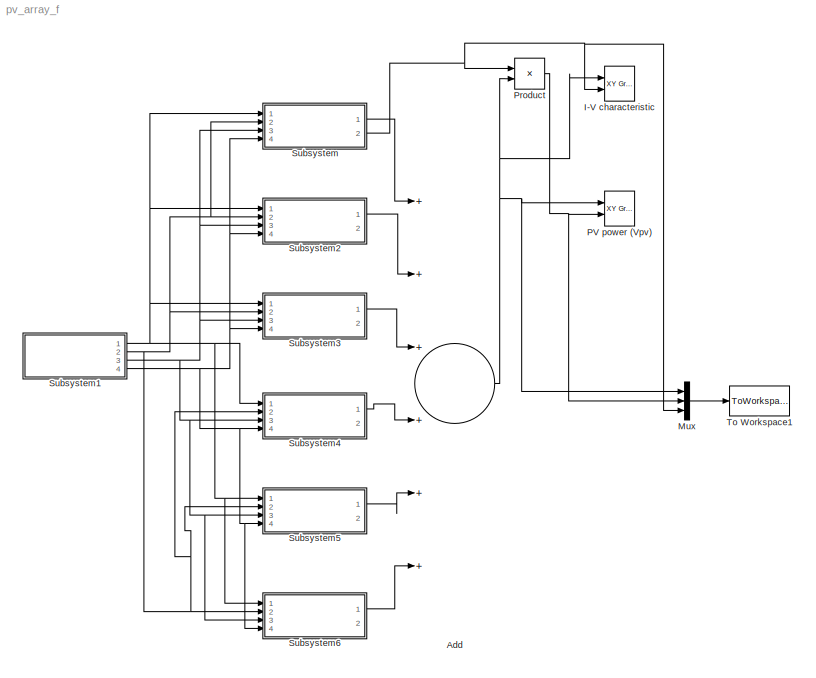
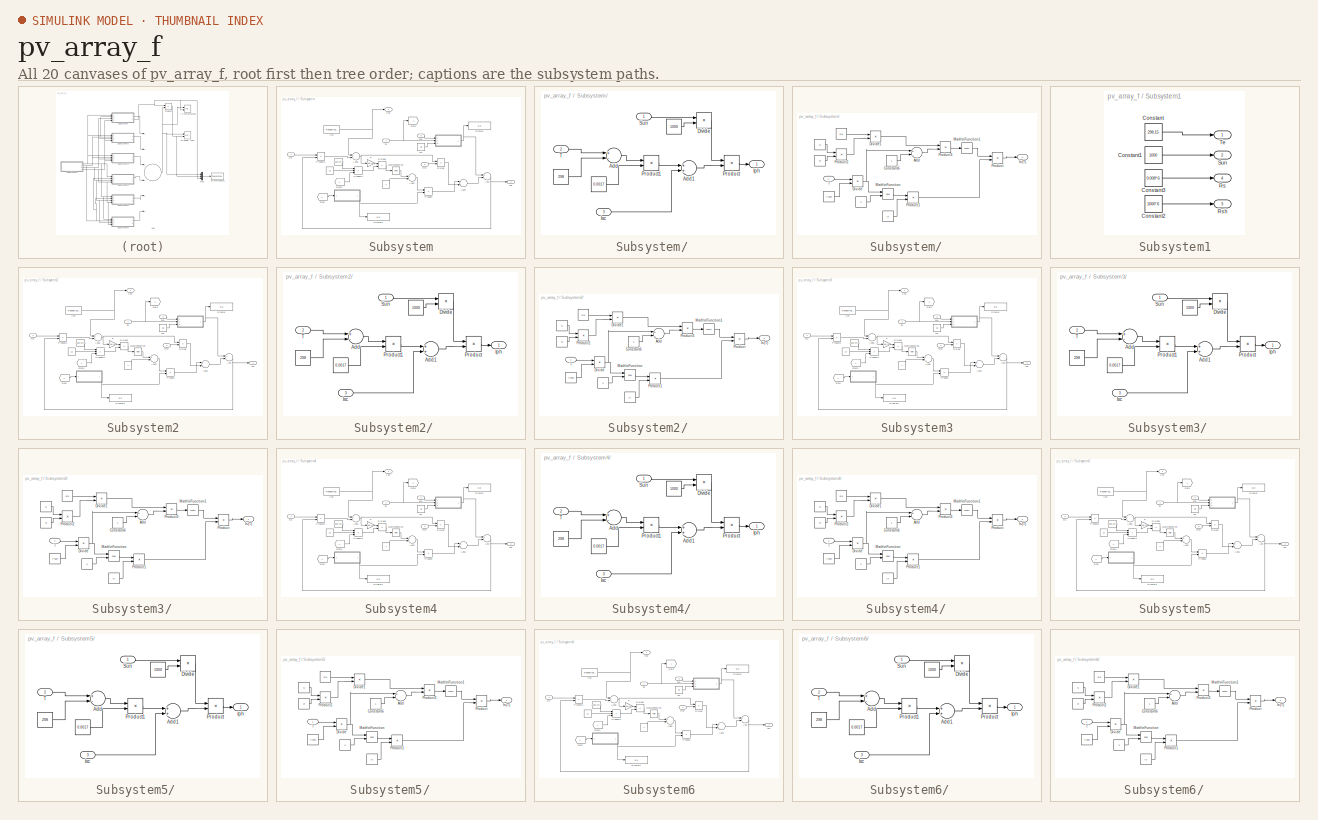
[diagram: thumbnail index - all 20 canvases of the model, root first then tree order]
MODEL pv_array_f
KIND model
BLOCK [Sum] Add
  InputSameDT = off
  Inputs = ++++++
  OutDataTypeStr = Inherit: Inherit via internal rule
  Ports = [6, 1]
  SID = 391
  SaturateOnIntegerOverflow = off
BLOCK [Reference] I-V characteristic  REF=simulink/Sinks/XY Graph
  Ports = [2]
  SID = 82
  SourceBlock = simulink/Sinks/XY Graph
  SourceProductBaseCode = SL
  SourceProductName = Simulink
  SourceType = XY scope.
  st = -1
  xmax = 130
  xmin = 0
  ymax = 4
  ymin = 0
BLOCK [Mux] Mux
  DisplayOption = bar
  Inputs = 3
  Ports = [3, 1]
  SID = 752
BLOCK [Reference] PV power (Vpv)  REF=simulink/Sinks/XY Graph
  Ports = [2]
  SID = 85
  SourceBlock = simulink/Sinks/XY Graph
  SourceProductBaseCode = SL
  SourceProductName = Simulink
  SourceType = XY scope.
  st = -1
  xmax = 130
  xmin = 0
  ymax = 400
  ymin = 0
BLOCK [Product] Product
  InputSameDT = off
  OutDataTypeStr = Inherit: Inherit via internal rule
  Ports = [2, 1]
  SID = 84
  SaturateOnIntegerOverflow = off
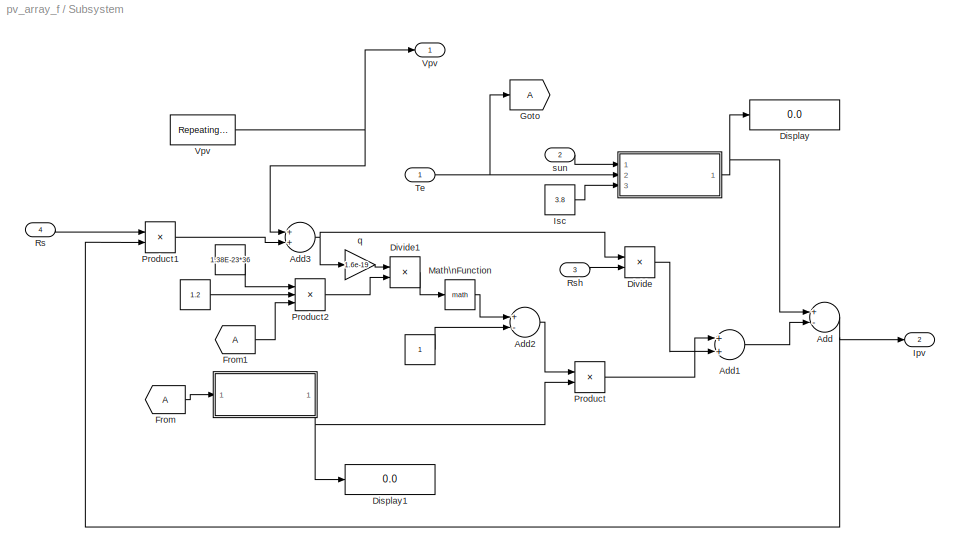
BLOCK [SubSystem] Subsystem
  Ports = [4, 2]
  RequestExecContextInheritance = off
  SID = 392
  Variant = off
BLOCK [SubSystem] Subsystem/  
  Ports = [3, 1]
  RequestExecContextInheritance = off
  SID = 397
  Variant = off
BLOCK [SubSystem] Subsystem/   
  Ports = [1, 1]
  RequestExecContextInheritance = off
  SID = 410
  Variant = off
BLOCK [Constant] Subsystem/           
  SID = 429
BLOCK [Constant] Subsystem/              
  SID = 430
  Value = 1.2
BLOCK [Constant] Subsystem/               
  SID = 431
  Value = 1.38E-23*36
BLOCK [Constant] Subsystem/   /  
  SID = 412
  Value = 3
BLOCK [Constant] Subsystem/   /      
  SID = 413
  Value = Is
BLOCK [Constant] Subsystem/   /        
  SID = 414
  Value = Tnom
BLOCK [Constant] Subsystem/   /                      
  SID = 415
  Value = Eg
BLOCK [Constant] Subsystem/   /                              
  SID = 416
  Value = N
BLOCK [Constant] Subsystem/   /                               
  SID = 417
  Value = vt
BLOCK [Sum] Subsystem/   /Add
  InputSameDT = off
  Inputs = +-
  OutDataTypeStr = Inherit: Inherit via internal rule
  Ports = [2, 1]
  SID = 418
  SaturateOnIntegerOverflow = off
BLOCK [Constant] Subsystem/   /Constant6
  SID = 419
BLOCK [Product] Subsystem/   /Divide
  InputSameDT = off
  Inputs = */
  OutDataTypeStr = Inherit: Inherit via internal rule
  Ports = [2, 1]
  RndMeth = Floor
  SID = 420
  SaturateOnIntegerOverflow = off
BLOCK [Product] Subsystem/   /Divide1
  InputSameDT = off
  Inputs = */
  OutDataTypeStr = Inherit: Inherit via internal rule
  Ports = [2, 1]
  RndMeth = Floor
  SID = 421
  SaturateOnIntegerOverflow = off
BLOCK [Outport] Subsystem/   /Is(T)
  IconDisplay = Port number
  SID = 428
BLOCK [Math] Subsystem/   /Math\nFunction
  Operator = pow
  Ports = [2, 1]
  SID = 422
BLOCK [Math] Subsystem/   /Math\nFunction1
  Ports = [1, 1]
  SID = 423
BLOCK [Product] Subsystem/   /Product
  InputSameDT = off
  OutDataTypeStr = Inherit: Inherit via internal rule
  Ports = [2, 1]
  SID = 424
  SaturateOnIntegerOverflow = off
BLOCK [Product] Subsystem/   /Product1
  InputSameDT = off
  OutDataTypeStr = Inherit: Inherit via internal rule
  Ports = [2, 1]
  SID = 425
  SaturateOnIntegerOverflow = off
BLOCK [Product] Subsystem/   /Product2
  InputSameDT = off
  OutDataTypeStr = Inherit: Inherit via internal rule
  Ports = [2, 1]
  SID = 426
  SaturateOnIntegerOverflow = off
BLOCK [Product] Subsystem/   /Product3
  InputSameDT = off
  OutDataTypeStr = Inherit: Inherit via internal rule
  Ports = [2, 1]
  SID = 427
  SaturateOnIntegerOverflow = off
BLOCK [Inport] Subsystem/   /T
  IconDisplay = Port number
  SID = 411
BLOCK [Constant] Subsystem/  /   
  SID = 401
  Value = 0.0017
BLOCK [Constant] Subsystem/  /    
  SID = 402
  Value = 1000
BLOCK [Constant] Subsystem/  /      
  SID = 403
  Value = 298
BLOCK [Sum] Subsystem/  /Add
  InputSameDT = off
  Inputs = +-
  OutDataTypeStr = Inherit: Inherit via internal rule
  Ports = [2, 1]
  SID = 404
  SaturateOnIntegerOverflow = off
BLOCK [Sum] Subsystem/  /Add1
  InputSameDT = off
  OutDataTypeStr = Inherit: Inherit via internal rule
  Ports = [2, 1]
  SID = 405
  SaturateOnIntegerOverflow = off
BLOCK [Product] Subsystem/  /Divide
  InputSameDT = off
  Inputs = */
  OutDataTypeStr = Inherit: Inherit via internal rule
  Ports = [2, 1]
  RndMeth = Floor
  SID = 406
  SaturateOnIntegerOverflow = off
BLOCK [Outport] Subsystem/  /Iph
  IconDisplay = Port number
  SID = 409
BLOCK [Inport] Subsystem/  /Isc
  IconDisplay = Port number
  Port = 3
  SID = 400
BLOCK [Product] Subsystem/  /Product
  InputSameDT = off
  OutDataTypeStr = Inherit: Inherit via internal rule
  Ports = [2, 1]
  SID = 407
  SaturateOnIntegerOverflow = off
BLOCK [Product] Subsystem/  /Product1
  InputSameDT = off
  OutDataTypeStr = Inherit: Inherit via internal rule
  Ports = [2, 1]
  SID = 408
  SaturateOnIntegerOverflow = off
BLOCK [Inport] Subsystem/  /Sun
  IconDisplay = Port number
  SID = 398
BLOCK [Inport] Subsystem/  /T
  IconDisplay = Port number
  Port = 2
  SID = 399
BLOCK [Sum] Subsystem/Add
  InputSameDT = off
  Inputs = +-
  OutDataTypeStr = Inherit: Inherit via internal rule
  Ports = [2, 1]
  SID = 432
  SaturateOnIntegerOverflow = off
BLOCK [Sum] Subsystem/Add1
  InputSameDT = off
  OutDataTypeStr = Inherit: Inherit via internal rule
  Ports = [2, 1]
  SID = 433
  SaturateOnIntegerOverflow = off
BLOCK [Sum] Subsystem/Add2
  InputSameDT = off
  Inputs = +-
  OutDataTypeStr = Inherit: Inherit via internal rule
  Ports = [2, 1]
  SID = 434
  SaturateOnIntegerOverflow = off
BLOCK [Sum] Subsystem/Add3
  InputSameDT = off
  OutDataTypeStr = Inherit: Inherit via internal rule
  Ports = [2, 1]
  SID = 435
  SaturateOnIntegerOverflow = off
BLOCK [Display] Subsystem/Display
  Decimation = 1
  Ports = [1]
  SID = 436
BLOCK [Display] Subsystem/Display1
  Decimation = 1
  Ports = [1]
  SID = 437
BLOCK [Product] Subsystem/Divide
  InputSameDT = off
  Inputs = */
  OutDataTypeStr = Inherit: Inherit via internal rule
  Ports = [2, 1]
  RndMeth = Floor
  SID = 438
  SaturateOnIntegerOverflow = off
BLOCK [Product] Subsystem/Divide1
  InputSameDT = off
  Inputs = */
  OutDataTypeStr = Inherit: Inherit via internal rule
  Ports = [2, 1]
  RndMeth = Floor
  SID = 439
  SaturateOnIntegerOverflow = off
BLOCK [From] Subsystem/From
  SID = 440
BLOCK [From] Subsystem/From1
  SID = 441
BLOCK [Goto] Subsystem/Goto
  SID = 442
BLOCK [Outport] Subsystem/Ipv
  IconDisplay = Port number
  Port = 2
  SID = 451
BLOCK [Constant] Subsystem/Isc
  SID = 443
  Value = 3.8
BLOCK [Math] Subsystem/Math\nFunction
  Ports = [1, 1]
  SID = 444
BLOCK [Product] Subsystem/Product
  InputSameDT = off
  OutDataTypeStr = Inherit: Inherit via internal rule
  Ports = [2, 1]
  SID = 445
  SaturateOnIntegerOverflow = off
BLOCK [Product] Subsystem/Product1
  InputSameDT = off
  OutDataTypeStr = Inherit: Inherit via internal rule
  Ports = [2, 1]
  SID = 446
  SaturateOnIntegerOverflow = off
BLOCK [Product] Subsystem/Product2
  InputSameDT = off
  Inputs = 3
  OutDataTypeStr = Inherit: Inherit via internal rule
  Ports = [3, 1]
  SID = 447
  SaturateOnIntegerOverflow = off
BLOCK [Inport] Subsystem/Rs
  IconDisplay = Port number
  Port = 4
  SID = 396
BLOCK [Inport] Subsystem/Rsh
  IconDisplay = Port number
  Port = 3
  SID = 395
BLOCK [Inport] Subsystem/Te
  IconDisplay = Port number
  SID = 393
BLOCK [Outport] Subsystem/Vpv
  IconDisplay = Port number
  SID = 450
BLOCK [Reference] Subsystem/Vpv        REF=simulink/Sources/Repeating\nSequence
  Ports = [0, 1]
  SID = 448
  SourceBlock = simulink/Sources/Repeating\nSequence
  SourceProductBaseCode = SL
  SourceProductName = Simulink
  SourceType = Repeating table
  rep_seq_t = [0 1 2]
  rep_seq_y = [-0.1  21.5 -0.1]
BLOCK [Gain] Subsystem/q
  Gain = 1.6e-19
  OutDataTypeStr = Inherit: Inherit via internal rule
  ParamDataTypeStr = Inherit: Inherit via internal rule
  SID = 449
  SaturateOnIntegerOverflow = off
BLOCK [Inport] Subsystem/sun
  IconDisplay = Port number
  Port = 2
  SID = 394
BLOCK [SubSystem] Subsystem1
  Ports = [0, 4]
  RequestExecContextInheritance = off
  SID = 71
  Variant = off
BLOCK [Constant] Subsystem1/Constant
  SID = 77
  Value = 298.15
BLOCK [Constant] Subsystem1/Constant1
  SID = 78
  Value = 1000
BLOCK [Constant] Subsystem1/Constant2
  SID = 79
  Value = 1000*6
BLOCK [Constant] Subsystem1/Constant3
  SID = 80
  Value = 0.008*6
BLOCK [Outport] Subsystem1/Rs
  IconDisplay = Port number
  Port = 4
  SID = 75
BLOCK [Outport] Subsystem1/Rsh
  IconDisplay = Port number
  Port = 3
  SID = 76
BLOCK [Outport] Subsystem1/Sun
  IconDisplay = Port number
  Port = 2
  SID = 74
BLOCK [Outport] Subsystem1/Te
  IconDisplay = Port number
  SID = 73
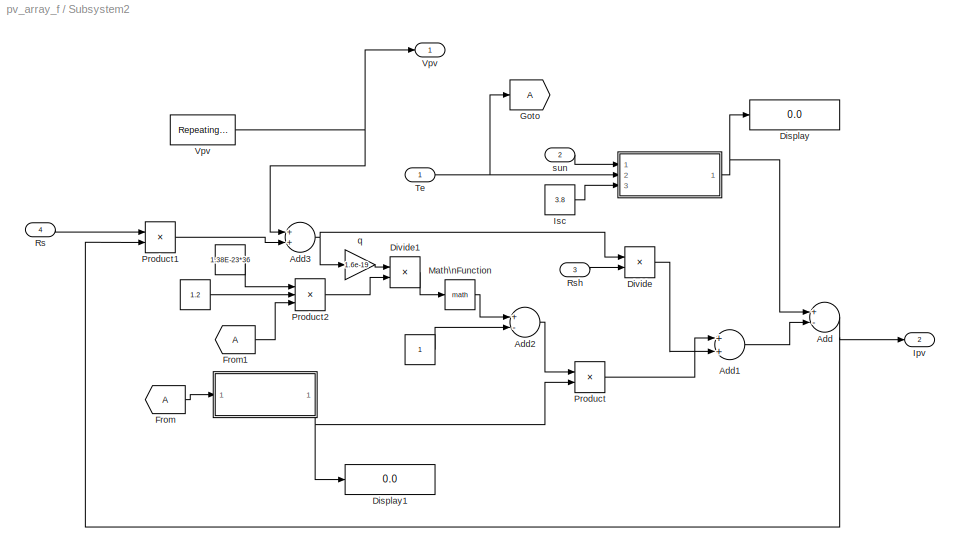
BLOCK [SubSystem] Subsystem2
  Ports = [4, 2]
  RequestExecContextInheritance = off
  SID = 452
  Variant = off
BLOCK [SubSystem] Subsystem2/  
  Ports = [3, 1]
  RequestExecContextInheritance = off
  SID = 457
  Variant = off
BLOCK [SubSystem] Subsystem2/   
  Ports = [1, 1]
  RequestExecContextInheritance = off
  SID = 470
  Variant = off
BLOCK [Constant] Subsystem2/           
  SID = 489
BLOCK [Constant] Subsystem2/              
  SID = 490
  Value = 1.2
BLOCK [Constant] Subsystem2/               
  SID = 491
  Value = 1.38E-23*36
BLOCK [Constant] Subsystem2/   /  
  SID = 472
  Value = 3
BLOCK [Constant] Subsystem2/   /      
  SID = 473
  Value = Is
BLOCK [Constant] Subsystem2/   /        
  SID = 474
  Value = Tnom
BLOCK [Constant] Subsystem2/   /                      
  SID = 475
  Value = Eg
BLOCK [Constant] Subsystem2/   /                              
  SID = 476
  Value = N
BLOCK [Constant] Subsystem2/   /                               
  SID = 477
  Value = vt
BLOCK [Sum] Subsystem2/   /Add
  InputSameDT = off
  Inputs = +-
  OutDataTypeStr = Inherit: Inherit via internal rule
  Ports = [2, 1]
  SID = 478
  SaturateOnIntegerOverflow = off
BLOCK [Constant] Subsystem2/   /Constant6
  SID = 479
BLOCK [Product] Subsystem2/   /Divide
  InputSameDT = off
  Inputs = */
  OutDataTypeStr = Inherit: Inherit via internal rule
  Ports = [2, 1]
  RndMeth = Floor
  SID = 480
  SaturateOnIntegerOverflow = off
BLOCK [Product] Subsystem2/   /Divide1
  InputSameDT = off
  Inputs = */
  OutDataTypeStr = Inherit: Inherit via internal rule
  Ports = [2, 1]
  RndMeth = Floor
  SID = 481
  SaturateOnIntegerOverflow = off
BLOCK [Outport] Subsystem2/   /Is(T)
  IconDisplay = Port number
  SID = 488
BLOCK [Math] Subsystem2/   /Math\nFunction
  Operator = pow
  Ports = [2, 1]
  SID = 482
BLOCK [Math] Subsystem2/   /Math\nFunction1
  Ports = [1, 1]
  SID = 483
BLOCK [Product] Subsystem2/   /Product
  InputSameDT = off
  OutDataTypeStr = Inherit: Inherit via internal rule
  Ports = [2, 1]
  SID = 484
  SaturateOnIntegerOverflow = off
BLOCK [Product] Subsystem2/   /Product1
  InputSameDT = off
  OutDataTypeStr = Inherit: Inherit via internal rule
  Ports = [2, 1]
  SID = 485
  SaturateOnIntegerOverflow = off
BLOCK [Product] Subsystem2/   /Product2
  InputSameDT = off
  OutDataTypeStr = Inherit: Inherit via internal rule
  Ports = [2, 1]
  SID = 486
  SaturateOnIntegerOverflow = off
BLOCK [Product] Subsystem2/   /Product3
  InputSameDT = off
  OutDataTypeStr = Inherit: Inherit via internal rule
  Ports = [2, 1]
  SID = 487
  SaturateOnIntegerOverflow = off
BLOCK [Inport] Subsystem2/   /T
  IconDisplay = Port number
  SID = 471
BLOCK [Constant] Subsystem2/  /   
  SID = 461
  Value = 0.0017
BLOCK [Constant] Subsystem2/  /    
  SID = 462
  Value = 1000
BLOCK [Constant] Subsystem2/  /      
  SID = 463
  Value = 298
BLOCK [Sum] Subsystem2/  /Add
  InputSameDT = off
  Inputs = +-
  OutDataTypeStr = Inherit: Inherit via internal rule
  Ports = [2, 1]
  SID = 464
  SaturateOnIntegerOverflow = off
BLOCK [Sum] Subsystem2/  /Add1
  InputSameDT = off
  OutDataTypeStr = Inherit: Inherit via internal rule
  Ports = [2, 1]
  SID = 465
  SaturateOnIntegerOverflow = off
BLOCK [Product] Subsystem2/  /Divide
  InputSameDT = off
  Inputs = */
  OutDataTypeStr = Inherit: Inherit via internal rule
  Ports = [2, 1]
  RndMeth = Floor
  SID = 466
  SaturateOnIntegerOverflow = off
BLOCK [Outport] Subsystem2/  /Iph
  IconDisplay = Port number
  SID = 469
BLOCK [Inport] Subsystem2/  /Isc
  IconDisplay = Port number
  Port = 3
  SID = 460
BLOCK [Product] Subsystem2/  /Product
  InputSameDT = off
  OutDataTypeStr = Inherit: Inherit via internal rule
  Ports = [2, 1]
  SID = 467
  SaturateOnIntegerOverflow = off
BLOCK [Product] Subsystem2/  /Product1
  InputSameDT = off
  OutDataTypeStr = Inherit: Inherit via internal rule
  Ports = [2, 1]
  SID = 468
  SaturateOnIntegerOverflow = off
BLOCK [Inport] Subsystem2/  /Sun
  IconDisplay = Port number
  SID = 458
BLOCK [Inport] Subsystem2/  /T
  IconDisplay = Port number
  Port = 2
  SID = 459
BLOCK [Sum] Subsystem2/Add
  InputSameDT = off
  Inputs = +-
  OutDataTypeStr = Inherit: Inherit via internal rule
  Ports = [2, 1]
  SID = 492
  SaturateOnIntegerOverflow = off
BLOCK [Sum] Subsystem2/Add1
  InputSameDT = off
  OutDataTypeStr = Inherit: Inherit via internal rule
  Ports = [2, 1]
  SID = 493
  SaturateOnIntegerOverflow = off
BLOCK [Sum] Subsystem2/Add2
  InputSameDT = off
  Inputs = +-
  OutDataTypeStr = Inherit: Inherit via internal rule
  Ports = [2, 1]
  SID = 494
  SaturateOnIntegerOverflow = off
BLOCK [Sum] Subsystem2/Add3
  InputSameDT = off
  OutDataTypeStr = Inherit: Inherit via internal rule
  Ports = [2, 1]
  SID = 495
  SaturateOnIntegerOverflow = off
BLOCK [Display] Subsystem2/Display
  Decimation = 1
  Ports = [1]
  SID = 496
BLOCK [Display] Subsystem2/Display1
  Decimation = 1
  Ports = [1]
  SID = 497
BLOCK [Product] Subsystem2/Divide
  InputSameDT = off
  Inputs = */
  OutDataTypeStr = Inherit: Inherit via internal rule
  Ports = [2, 1]
  RndMeth = Floor
  SID = 498
  SaturateOnIntegerOverflow = off
BLOCK [Product] Subsystem2/Divide1
  InputSameDT = off
  Inputs = */
  OutDataTypeStr = Inherit: Inherit via internal rule
  Ports = [2, 1]
  RndMeth = Floor
  SID = 499
  SaturateOnIntegerOverflow = off
BLOCK [From] Subsystem2/From
  SID = 500
BLOCK [From] Subsystem2/From1
  SID = 501
BLOCK [Goto] Subsystem2/Goto
  SID = 502
BLOCK [Outport] Subsystem2/Ipv
  IconDisplay = Port number
  Port = 2
  SID = 511
BLOCK [Constant] Subsystem2/Isc
  SID = 503
  Value = 3.8
BLOCK [Math] Subsystem2/Math\nFunction
  Ports = [1, 1]
  SID = 504
BLOCK [Product] Subsystem2/Product
  InputSameDT = off
  OutDataTypeStr = Inherit: Inherit via internal rule
  Ports = [2, 1]
  SID = 505
  SaturateOnIntegerOverflow = off
BLOCK [Product] Subsystem2/Product1
  InputSameDT = off
  OutDataTypeStr = Inherit: Inherit via internal rule
  Ports = [2, 1]
  SID = 506
  SaturateOnIntegerOverflow = off
BLOCK [Product] Subsystem2/Product2
  InputSameDT = off
  Inputs = 3
  OutDataTypeStr = Inherit: Inherit via internal rule
  Ports = [3, 1]
  SID = 507
  SaturateOnIntegerOverflow = off
BLOCK [Inport] Subsystem2/Rs
  IconDisplay = Port number
  Port = 4
  SID = 456
BLOCK [Inport] Subsystem2/Rsh
  IconDisplay = Port number
  Port = 3
  SID = 455
BLOCK [Inport] Subsystem2/Te
  IconDisplay = Port number
  SID = 453
BLOCK [Outport] Subsystem2/Vpv
  IconDisplay = Port number
  SID = 510
BLOCK [Reference] Subsystem2/Vpv        REF=simulink/Sources/Repeating\nSequence
  Ports = [0, 1]
  SID = 508
  SourceBlock = simulink/Sources/Repeating\nSequence
  SourceProductBaseCode = SL
  SourceProductName = Simulink
  SourceType = Repeating table
  rep_seq_t = [0 1 2]
  rep_seq_y = [-0.1  21.5 -0.1]
BLOCK [Gain] Subsystem2/q
  Gain = 1.6e-19
  OutDataTypeStr = Inherit: Inherit via internal rule
  ParamDataTypeStr = Inherit: Inherit via internal rule
  SID = 509
  SaturateOnIntegerOverflow = off
BLOCK [Inport] Subsystem2/sun
  IconDisplay = Port number
  Port = 2
  SID = 454
BLOCK [SubSystem] Subsystem3
  Ports = [4, 2]
  RequestExecContextInheritance = off
  SID = 512
  Variant = off
BLOCK [SubSystem] Subsystem3/  
  Ports = [3, 1]
  RequestExecContextInheritance = off
  SID = 517
  Variant = off
BLOCK [SubSystem] Subsystem3/   
  Ports = [1, 1]
  RequestExecContextInheritance = off
  SID = 530
  Variant = off
BLOCK [Constant] Subsystem3/           
  SID = 549
BLOCK [Constant] Subsystem3/              
  SID = 550
  Value = 1.2
BLOCK [Constant] Subsystem3/               
  SID = 551
  Value = 1.38E-23*36
BLOCK [Constant] Subsystem3/   /  
  SID = 532
  Value = 3
BLOCK [Constant] Subsystem3/   /      
  SID = 533
  Value = Is
BLOCK [Constant] Subsystem3/   /        
  SID = 534
  Value = Tnom
BLOCK [Constant] Subsystem3/   /                      
  SID = 535
  Value = Eg
BLOCK [Constant] Subsystem3/   /                              
  SID = 536
  Value = N
BLOCK [Constant] Subsystem3/   /                               
  SID = 537
  Value = vt
BLOCK [Sum] Subsystem3/   /Add
  InputSameDT = off
  Inputs = +-
  OutDataTypeStr = Inherit: Inherit via internal rule
  Ports = [2, 1]
  SID = 538
  SaturateOnIntegerOverflow = off
BLOCK [Constant] Subsystem3/   /Constant6
  SID = 539
BLOCK [Product] Subsystem3/   /Divide
  InputSameDT = off
  Inputs = */
  OutDataTypeStr = Inherit: Inherit via internal rule
  Ports = [2, 1]
  RndMeth = Floor
  SID = 540
  SaturateOnIntegerOverflow = off
BLOCK [Product] Subsystem3/   /Divide1
  InputSameDT = off
  Inputs = */
  OutDataTypeStr = Inherit: Inherit via internal rule
  Ports = [2, 1]
  RndMeth = Floor
  SID = 541
  SaturateOnIntegerOverflow = off
BLOCK [Outport] Subsystem3/   /Is(T)
  IconDisplay = Port number
  SID = 548
BLOCK [Math] Subsystem3/   /Math\nFunction
  Operator = pow
  Ports = [2, 1]
  SID = 542
BLOCK [Math] Subsystem3/   /Math\nFunction1
  Ports = [1, 1]
  SID = 543
BLOCK [Product] Subsystem3/   /Product
  InputSameDT = off
  OutDataTypeStr = Inherit: Inherit via internal rule
  Ports = [2, 1]
  SID = 544
  SaturateOnIntegerOverflow = off
BLOCK [Product] Subsystem3/   /Product1
  InputSameDT = off
  OutDataTypeStr = Inherit: Inherit via internal rule
  Ports = [2, 1]
  SID = 545
  SaturateOnIntegerOverflow = off
BLOCK [Product] Subsystem3/   /Product2
  InputSameDT = off
  OutDataTypeStr = Inherit: Inherit via internal rule
  Ports = [2, 1]
  SID = 546
  SaturateOnIntegerOverflow = off
BLOCK [Product] Subsystem3/   /Product3
  InputSameDT = off
  OutDataTypeStr = Inherit: Inherit via internal rule
  Ports = [2, 1]
  SID = 547
  SaturateOnIntegerOverflow = off
BLOCK [Inport] Subsystem3/   /T
  IconDisplay = Port number
  SID = 531
BLOCK [Constant] Subsystem3/  /   
  SID = 521
  Value = 0.0017
BLOCK [Constant] Subsystem3/  /    
  SID = 522
  Value = 1000
BLOCK [Constant] Subsystem3/  /      
  SID = 523
  Value = 298
BLOCK [Sum] Subsystem3/  /Add
  InputSameDT = off
  Inputs = +-
  OutDataTypeStr = Inherit: Inherit via internal rule
  Ports = [2, 1]
  SID = 524
  SaturateOnIntegerOverflow = off
BLOCK [Sum] Subsystem3/  /Add1
  InputSameDT = off
  OutDataTypeStr = Inherit: Inherit via internal rule
  Ports = [2, 1]
  SID = 525
  SaturateOnIntegerOverflow = off
BLOCK [Product] Subsystem3/  /Divide
  InputSameDT = off
  Inputs = */
  OutDataTypeStr = Inherit: Inherit via internal rule
  Ports = [2, 1]
  RndMeth = Floor
  SID = 526
  SaturateOnIntegerOverflow = off
BLOCK [Outport] Subsystem3/  /Iph
  IconDisplay = Port number
  SID = 529
BLOCK [Inport] Subsystem3/  /Isc
  IconDisplay = Port number
  Port = 3
  SID = 520
BLOCK [Product] Subsystem3/  /Product
  InputSameDT = off
  OutDataTypeStr = Inherit: Inherit via internal rule
  Ports = [2, 1]
  SID = 527
  SaturateOnIntegerOverflow = off
BLOCK [Product] Subsystem3/  /Product1
  InputSameDT = off
  OutDataTypeStr = Inherit: Inherit via internal rule
  Ports = [2, 1]
  SID = 528
  SaturateOnIntegerOverflow = off
BLOCK [Inport] Subsystem3/  /Sun
  IconDisplay = Port number
  SID = 518
BLOCK [Inport] Subsystem3/  /T
  IconDisplay = Port number
  Port = 2
  SID = 519
BLOCK [Sum] Subsystem3/Add
  InputSameDT = off
  Inputs = +-
  OutDataTypeStr = Inherit: Inherit via internal rule
  Ports = [2, 1]
  SID = 552
  SaturateOnIntegerOverflow = off
BLOCK [Sum] Subsystem3/Add1
  InputSameDT = off
  OutDataTypeStr = Inherit: Inherit via internal rule
  Ports = [2, 1]
  SID = 553
  SaturateOnIntegerOverflow = off
BLOCK [Sum] Subsystem3/Add2
  InputSameDT = off
  Inputs = +-
  OutDataTypeStr = Inherit: Inherit via internal rule
  Ports = [2, 1]
  SID = 554
  SaturateOnIntegerOverflow = off
BLOCK [Sum] Subsystem3/Add3
  InputSameDT = off
  OutDataTypeStr = Inherit: Inherit via internal rule
  Ports = [2, 1]
  SID = 555
  SaturateOnIntegerOverflow = off
BLOCK [Display] Subsystem3/Display
  Decimation = 1
  Ports = [1]
  SID = 556
BLOCK [Display] Subsystem3/Display1
  Decimation = 1
  Ports = [1]
  SID = 557
BLOCK [Product] Subsystem3/Divide
  InputSameDT = off
  Inputs = */
  OutDataTypeStr = Inherit: Inherit via internal rule
  Ports = [2, 1]
  RndMeth = Floor
  SID = 558
  SaturateOnIntegerOverflow = off
BLOCK [Product] Subsystem3/Divide1
  InputSameDT = off
  Inputs = */
  OutDataTypeStr = Inherit: Inherit via internal rule
  Ports = [2, 1]
  RndMeth = Floor
  SID = 559
  SaturateOnIntegerOverflow = off
BLOCK [From] Subsystem3/From
  SID = 560
BLOCK [From] Subsystem3/From1
  SID = 561
BLOCK [Goto] Subsystem3/Goto
  SID = 562
BLOCK [Outport] Subsystem3/Ipv
  IconDisplay = Port number
  Port = 2
  SID = 571
BLOCK [Constant] Subsystem3/Isc
  SID = 563
  Value = 3.8
BLOCK [Math] Subsystem3/Math\nFunction
  Ports = [1, 1]
  SID = 564
BLOCK [Product] Subsystem3/Product
  InputSameDT = off
  OutDataTypeStr = Inherit: Inherit via internal rule
  Ports = [2, 1]
  SID = 565
  SaturateOnIntegerOverflow = off
BLOCK [Product] Subsystem3/Product1
  InputSameDT = off
  OutDataTypeStr = Inherit: Inherit via internal rule
  Ports = [2, 1]
  SID = 566
  SaturateOnIntegerOverflow = off
BLOCK [Product] Subsystem3/Product2
  InputSameDT = off
  Inputs = 3
  OutDataTypeStr = Inherit: Inherit via internal rule
  Ports = [3, 1]
  SID = 567
  SaturateOnIntegerOverflow = off
BLOCK [Inport] Subsystem3/Rs
  IconDisplay = Port number
  Port = 4
  SID = 516
BLOCK [Inport] Subsystem3/Rsh
  IconDisplay = Port number
  Port = 3
  SID = 515
BLOCK [Inport] Subsystem3/Te
  IconDisplay = Port number
  SID = 513
BLOCK [Outport] Subsystem3/Vpv
  IconDisplay = Port number
  SID = 570
BLOCK [Reference] Subsystem3/Vpv        REF=simulink/Sources/Repeating\nSequence
  Ports = [0, 1]
  SID = 568
  SourceBlock = simulink/Sources/Repeating\nSequence
  SourceProductBaseCode = SL
  SourceProductName = Simulink
  SourceType = Repeating table
  rep_seq_t = [0 1 2]
  rep_seq_y = [-0.1  21.5 -0.1]
BLOCK [Gain] Subsystem3/q
  Gain = 1.6e-19
  OutDataTypeStr = Inherit: Inherit via internal rule
  ParamDataTypeStr = Inherit: Inherit via internal rule
  SID = 569
  SaturateOnIntegerOverflow = off
BLOCK [Inport] Subsystem3/sun
  IconDisplay = Port number
  Port = 2
  SID = 514
BLOCK [SubSystem] Subsystem4
  Ports = [4, 2]
  RequestExecContextInheritance = off
  SID = 572
  Variant = off
BLOCK [SubSystem] Subsystem4/  
  Ports = [3, 1]
  RequestExecContextInheritance = off
  SID = 577
  Variant = off
BLOCK [SubSystem] Subsystem4/   
  Ports = [1, 1]
  RequestExecContextInheritance = off
  SID = 590
  Variant = off
BLOCK [Constant] Subsystem4/           
  SID = 609
BLOCK [Constant] Subsystem4/              
  SID = 610
  Value = 1.2
BLOCK [Constant] Subsystem4/               
  SID = 611
  Value = 1.38E-23*36
BLOCK [Constant] Subsystem4/   /  
  SID = 592
  Value = 3
BLOCK [Constant] Subsystem4/   /      
  SID = 593
  Value = Is
BLOCK [Constant] Subsystem4/   /        
  SID = 594
  Value = Tnom
BLOCK [Constant] Subsystem4/   /                      
  SID = 595
  Value = Eg
BLOCK [Constant] Subsystem4/   /                              
  SID = 596
  Value = N
BLOCK [Constant] Subsystem4/   /                               
  SID = 597
  Value = vt
BLOCK [Sum] Subsystem4/   /Add
  InputSameDT = off
  Inputs = +-
  OutDataTypeStr = Inherit: Inherit via internal rule
  Ports = [2, 1]
  SID = 598
  SaturateOnIntegerOverflow = off
BLOCK [Constant] Subsystem4/   /Constant6
  SID = 599
BLOCK [Product] Subsystem4/   /Divide
  InputSameDT = off
  Inputs = */
  OutDataTypeStr = Inherit: Inherit via internal rule
  Ports = [2, 1]
  RndMeth = Floor
  SID = 600
  SaturateOnIntegerOverflow = off
BLOCK [Product] Subsystem4/   /Divide1
  InputSameDT = off
  Inputs = */
  OutDataTypeStr = Inherit: Inherit via internal rule
  Ports = [2, 1]
  RndMeth = Floor
  SID = 601
  SaturateOnIntegerOverflow = off
BLOCK [Outport] Subsystem4/   /Is(T)
  IconDisplay = Port number
  SID = 608
BLOCK [Math] Subsystem4/   /Math\nFunction
  Operator = pow
  Ports = [2, 1]
  SID = 602
BLOCK [Math] Subsystem4/   /Math\nFunction1
  Ports = [1, 1]
  SID = 603
BLOCK [Product] Subsystem4/   /Product
  InputSameDT = off
  OutDataTypeStr = Inherit: Inherit via internal rule
  Ports = [2, 1]
  SID = 604
  SaturateOnIntegerOverflow = off
BLOCK [Product] Subsystem4/   /Product1
  InputSameDT = off
  OutDataTypeStr = Inherit: Inherit via internal rule
  Ports = [2, 1]
  SID = 605
  SaturateOnIntegerOverflow = off
BLOCK [Product] Subsystem4/   /Product2
  InputSameDT = off
  OutDataTypeStr = Inherit: Inherit via internal rule
  Ports = [2, 1]
  SID = 606
  SaturateOnIntegerOverflow = off
BLOCK [Product] Subsystem4/   /Product3
  InputSameDT = off
  OutDataTypeStr = Inherit: Inherit via internal rule
  Ports = [2, 1]
  SID = 607
  SaturateOnIntegerOverflow = off
BLOCK [Inport] Subsystem4/   /T
  IconDisplay = Port number
  SID = 591
BLOCK [Constant] Subsystem4/  /   
  SID = 581
  Value = 0.0017
BLOCK [Constant] Subsystem4/  /    
  SID = 582
  Value = 1000
BLOCK [Constant] Subsystem4/  /      
  SID = 583
  Value = 298
BLOCK [Sum] Subsystem4/  /Add
  InputSameDT = off
  Inputs = +-
  OutDataTypeStr = Inherit: Inherit via internal rule
  Ports = [2, 1]
  SID = 584
  SaturateOnIntegerOverflow = off
BLOCK [Sum] Subsystem4/  /Add1
  InputSameDT = off
  OutDataTypeStr = Inherit: Inherit via internal rule
  Ports = [2, 1]
  SID = 585
  SaturateOnIntegerOverflow = off
BLOCK [Product] Subsystem4/  /Divide
  InputSameDT = off
  Inputs = */
  OutDataTypeStr = Inherit: Inherit via internal rule
  Ports = [2, 1]
  RndMeth = Floor
  SID = 586
  SaturateOnIntegerOverflow = off
BLOCK [Outport] Subsystem4/  /Iph
  IconDisplay = Port number
  SID = 589
BLOCK [Inport] Subsystem4/  /Isc
  IconDisplay = Port number
  Port = 3
  SID = 580
BLOCK [Product] Subsystem4/  /Product
  InputSameDT = off
  OutDataTypeStr = Inherit: Inherit via internal rule
  Ports = [2, 1]
  SID = 587
  SaturateOnIntegerOverflow = off
BLOCK [Product] Subsystem4/  /Product1
  InputSameDT = off
  OutDataTypeStr = Inherit: Inherit via internal rule
  Ports = [2, 1]
  SID = 588
  SaturateOnIntegerOverflow = off
BLOCK [Inport] Subsystem4/  /Sun
  IconDisplay = Port number
  SID = 578
BLOCK [Inport] Subsystem4/  /T
  IconDisplay = Port number
  Port = 2
  SID = 579
BLOCK [Sum] Subsystem4/Add
  InputSameDT = off
  Inputs = +-
  OutDataTypeStr = Inherit: Inherit via internal rule
  Ports = [2, 1]
  SID = 612
  SaturateOnIntegerOverflow = off
BLOCK [Sum] Subsystem4/Add1
  InputSameDT = off
  OutDataTypeStr = Inherit: Inherit via internal rule
  Ports = [2, 1]
  SID = 613
  SaturateOnIntegerOverflow = off
BLOCK [Sum] Subsystem4/Add2
  InputSameDT = off
  Inputs = +-
  OutDataTypeStr = Inherit: Inherit via internal rule
  Ports = [2, 1]
  SID = 614
  SaturateOnIntegerOverflow = off
BLOCK [Sum] Subsystem4/Add3
  InputSameDT = off
  OutDataTypeStr = Inherit: Inherit via internal rule
  Ports = [2, 1]
  SID = 615
  SaturateOnIntegerOverflow = off
BLOCK [Display] Subsystem4/Display
  Decimation = 1
  Ports = [1]
  SID = 616
BLOCK [Display] Subsystem4/Display1
  Decimation = 1
  Ports = [1]
  SID = 617
BLOCK [Product] Subsystem4/Divide
  InputSameDT = off
  Inputs = */
  OutDataTypeStr = Inherit: Inherit via internal rule
  Ports = [2, 1]
  RndMeth = Floor
  SID = 618
  SaturateOnIntegerOverflow = off
BLOCK [Product] Subsystem4/Divide1
  InputSameDT = off
  Inputs = */
  OutDataTypeStr = Inherit: Inherit via internal rule
  Ports = [2, 1]
  RndMeth = Floor
  SID = 619
  SaturateOnIntegerOverflow = off
BLOCK [From] Subsystem4/From
  SID = 620
BLOCK [From] Subsystem4/From1
  SID = 621
BLOCK [Goto] Subsystem4/Goto
  SID = 622
BLOCK [Outport] Subsystem4/Ipv
  IconDisplay = Port number
  Port = 2
  SID = 631
BLOCK [Constant] Subsystem4/Isc
  SID = 623
  Value = 3.8
BLOCK [Math] Subsystem4/Math\nFunction
  Ports = [1, 1]
  SID = 624
BLOCK [Product] Subsystem4/Product
  InputSameDT = off
  OutDataTypeStr = Inherit: Inherit via internal rule
  Ports = [2, 1]
  SID = 625
  SaturateOnIntegerOverflow = off
BLOCK [Product] Subsystem4/Product1
  InputSameDT = off
  OutDataTypeStr = Inherit: Inherit via internal rule
  Ports = [2, 1]
  SID = 626
  SaturateOnIntegerOverflow = off
BLOCK [Product] Subsystem4/Product2
  InputSameDT = off
  Inputs = 3
  OutDataTypeStr = Inherit: Inherit via internal rule
  Ports = [3, 1]
  SID = 627
  SaturateOnIntegerOverflow = off
BLOCK [Inport] Subsystem4/Rs
  IconDisplay = Port number
  Port = 4
  SID = 576
BLOCK [Inport] Subsystem4/Rsh
  IconDisplay = Port number
  Port = 3
  SID = 575
BLOCK [Inport] Subsystem4/Te
  IconDisplay = Port number
  SID = 573
BLOCK [Outport] Subsystem4/Vpv
  IconDisplay = Port number
  SID = 630
BLOCK [Reference] Subsystem4/Vpv        REF=simulink/Sources/Repeating\nSequence
  Ports = [0, 1]
  SID = 628
  SourceBlock = simulink/Sources/Repeating\nSequence
  SourceProductBaseCode = SL
  SourceProductName = Simulink
  SourceType = Repeating table
  rep_seq_t = [0 1 2]
  rep_seq_y = [-0.1  21.5 -0.1]
BLOCK [Gain] Subsystem4/q
  Gain = 1.6e-19
  OutDataTypeStr = Inherit: Inherit via internal rule
  ParamDataTypeStr = Inherit: Inherit via internal rule
  SID = 629
  SaturateOnIntegerOverflow = off
BLOCK [Inport] Subsystem4/sun
  IconDisplay = Port number
  Port = 2
  SID = 574
BLOCK [SubSystem] Subsystem5
  Ports = [4, 2]
  RequestExecContextInheritance = off
  SID = 632
  Variant = off
BLOCK [SubSystem] Subsystem5/  
  Ports = [3, 1]
  RequestExecContextInheritance = off
  SID = 637
  Variant = off
BLOCK [SubSystem] Subsystem5/   
  Ports = [1, 1]
  RequestExecContextInheritance = off
  SID = 650
  Variant = off
BLOCK [Constant] Subsystem5/           
  SID = 669
BLOCK [Constant] Subsystem5/              
  SID = 670
  Value = 1.2
BLOCK [Constant] Subsystem5/               
  SID = 671
  Value = 1.38E-23*36
BLOCK [Constant] Subsystem5/   /  
  SID = 652
  Value = 3
BLOCK [Constant] Subsystem5/   /      
  SID = 653
  Value = Is
BLOCK [Constant] Subsystem5/   /        
  SID = 654
  Value = Tnom
BLOCK [Constant] Subsystem5/   /                      
  SID = 655
  Value = Eg
BLOCK [Constant] Subsystem5/   /                              
  SID = 656
  Value = N
BLOCK [Constant] Subsystem5/   /                               
  SID = 657
  Value = vt
BLOCK [Sum] Subsystem5/   /Add
  InputSameDT = off
  Inputs = +-
  OutDataTypeStr = Inherit: Inherit via internal rule
  Ports = [2, 1]
  SID = 658
  SaturateOnIntegerOverflow = off
BLOCK [Constant] Subsystem5/   /Constant6
  SID = 659
BLOCK [Product] Subsystem5/   /Divide
  InputSameDT = off
  Inputs = */
  OutDataTypeStr = Inherit: Inherit via internal rule
  Ports = [2, 1]
  RndMeth = Floor
  SID = 660
  SaturateOnIntegerOverflow = off
BLOCK [Product] Subsystem5/   /Divide1
  InputSameDT = off
  Inputs = */
  OutDataTypeStr = Inherit: Inherit via internal rule
  Ports = [2, 1]
  RndMeth = Floor
  SID = 661
  SaturateOnIntegerOverflow = off
BLOCK [Outport] Subsystem5/   /Is(T)
  IconDisplay = Port number
  SID = 668
BLOCK [Math] Subsystem5/   /Math\nFunction
  Operator = pow
  Ports = [2, 1]
  SID = 662
BLOCK [Math] Subsystem5/   /Math\nFunction1
  Ports = [1, 1]
  SID = 663
BLOCK [Product] Subsystem5/   /Product
  InputSameDT = off
  OutDataTypeStr = Inherit: Inherit via internal rule
  Ports = [2, 1]
  SID = 664
  SaturateOnIntegerOverflow = off
BLOCK [Product] Subsystem5/   /Product1
  InputSameDT = off
  OutDataTypeStr = Inherit: Inherit via internal rule
  Ports = [2, 1]
  SID = 665
  SaturateOnIntegerOverflow = off
BLOCK [Product] Subsystem5/   /Product2
  InputSameDT = off
  OutDataTypeStr = Inherit: Inherit via internal rule
  Ports = [2, 1]
  SID = 666
  SaturateOnIntegerOverflow = off
BLOCK [Product] Subsystem5/   /Product3
  InputSameDT = off
  OutDataTypeStr = Inherit: Inherit via internal rule
  Ports = [2, 1]
  SID = 667
  SaturateOnIntegerOverflow = off
BLOCK [Inport] Subsystem5/   /T
  IconDisplay = Port number
  SID = 651
BLOCK [Constant] Subsystem5/  /   
  SID = 641
  Value = 0.0017
BLOCK [Constant] Subsystem5/  /    
  SID = 642
  Value = 1000
BLOCK [Constant] Subsystem5/  /      
  SID = 643
  Value = 298
BLOCK [Sum] Subsystem5/  /Add
  InputSameDT = off
  Inputs = +-
  OutDataTypeStr = Inherit: Inherit via internal rule
  Ports = [2, 1]
  SID = 644
  SaturateOnIntegerOverflow = off
BLOCK [Sum] Subsystem5/  /Add1
  InputSameDT = off
  OutDataTypeStr = Inherit: Inherit via internal rule
  Ports = [2, 1]
  SID = 645
  SaturateOnIntegerOverflow = off
BLOCK [Product] Subsystem5/  /Divide
  InputSameDT = off
  Inputs = */
  OutDataTypeStr = Inherit: Inherit via internal rule
  Ports = [2, 1]
  RndMeth = Floor
  SID = 646
  SaturateOnIntegerOverflow = off
BLOCK [Outport] Subsystem5/  /Iph
  IconDisplay = Port number
  SID = 649
BLOCK [Inport] Subsystem5/  /Isc
  IconDisplay = Port number
  Port = 3
  SID = 640
BLOCK [Product] Subsystem5/  /Product
  InputSameDT = off
  OutDataTypeStr = Inherit: Inherit via internal rule
  Ports = [2, 1]
  SID = 647
  SaturateOnIntegerOverflow = off
BLOCK [Product] Subsystem5/  /Product1
  InputSameDT = off
  OutDataTypeStr = Inherit: Inherit via internal rule
  Ports = [2, 1]
  SID = 648
  SaturateOnIntegerOverflow = off
BLOCK [Inport] Subsystem5/  /Sun
  IconDisplay = Port number
  SID = 638
BLOCK [Inport] Subsystem5/  /T
  IconDisplay = Port number
  Port = 2
  SID = 639
BLOCK [Sum] Subsystem5/Add
  InputSameDT = off
  Inputs = +-
  OutDataTypeStr = Inherit: Inherit via internal rule
  Ports = [2, 1]
  SID = 672
  SaturateOnIntegerOverflow = off
BLOCK [Sum] Subsystem5/Add1
  InputSameDT = off
  OutDataTypeStr = Inherit: Inherit via internal rule
  Ports = [2, 1]
  SID = 673
  SaturateOnIntegerOverflow = off
BLOCK [Sum] Subsystem5/Add2
  InputSameDT = off
  Inputs = +-
  OutDataTypeStr = Inherit: Inherit via internal rule
  Ports = [2, 1]
  SID = 674
  SaturateOnIntegerOverflow = off
BLOCK [Sum] Subsystem5/Add3
  InputSameDT = off
  OutDataTypeStr = Inherit: Inherit via internal rule
  Ports = [2, 1]
  SID = 675
  SaturateOnIntegerOverflow = off
BLOCK [Display] Subsystem5/Display
  Decimation = 1
  Ports = [1]
  SID = 676
BLOCK [Display] Subsystem5/Display1
  Decimation = 1
  Ports = [1]
  SID = 677
BLOCK [Product] Subsystem5/Divide
  InputSameDT = off
  Inputs = */
  OutDataTypeStr = Inherit: Inherit via internal rule
  Ports = [2, 1]
  RndMeth = Floor
  SID = 678
  SaturateOnIntegerOverflow = off
BLOCK [Product] Subsystem5/Divide1
  InputSameDT = off
  Inputs = */
  OutDataTypeStr = Inherit: Inherit via internal rule
  Ports = [2, 1]
  RndMeth = Floor
  SID = 679
  SaturateOnIntegerOverflow = off
BLOCK [From] Subsystem5/From
  SID = 680
BLOCK [From] Subsystem5/From1
  SID = 681
BLOCK [Goto] Subsystem5/Goto
  SID = 682
BLOCK [Outport] Subsystem5/Ipv
  IconDisplay = Port number
  Port = 2
  SID = 691
BLOCK [Constant] Subsystem5/Isc
  SID = 683
  Value = 3.8
BLOCK [Math] Subsystem5/Math\nFunction
  Ports = [1, 1]
  SID = 684
BLOCK [Product] Subsystem5/Product
  InputSameDT = off
  OutDataTypeStr = Inherit: Inherit via internal rule
  Ports = [2, 1]
  SID = 685
  SaturateOnIntegerOverflow = off
BLOCK [Product] Subsystem5/Product1
  InputSameDT = off
  OutDataTypeStr = Inherit: Inherit via internal rule
  Ports = [2, 1]
  SID = 686
  SaturateOnIntegerOverflow = off
BLOCK [Product] Subsystem5/Product2
  InputSameDT = off
  Inputs = 3
  OutDataTypeStr = Inherit: Inherit via internal rule
  Ports = [3, 1]
  SID = 687
  SaturateOnIntegerOverflow = off
BLOCK [Inport] Subsystem5/Rs
  IconDisplay = Port number
  Port = 4
  SID = 636
BLOCK [Inport] Subsystem5/Rsh
  IconDisplay = Port number
  Port = 3
  SID = 635
BLOCK [Inport] Subsystem5/Te
  IconDisplay = Port number
  SID = 633
BLOCK [Outport] Subsystem5/Vpv
  IconDisplay = Port number
  SID = 690
BLOCK [Reference] Subsystem5/Vpv        REF=simulink/Sources/Repeating\nSequence
  Ports = [0, 1]
  SID = 688
  SourceBlock = simulink/Sources/Repeating\nSequence
  SourceProductBaseCode = SL
  SourceProductName = Simulink
  SourceType = Repeating table
  rep_seq_t = [0 1 2]
  rep_seq_y = [-0.1  21.5 -0.1]
BLOCK [Gain] Subsystem5/q
  Gain = 1.6e-19
  OutDataTypeStr = Inherit: Inherit via internal rule
  ParamDataTypeStr = Inherit: Inherit via internal rule
  SID = 689
  SaturateOnIntegerOverflow = off
BLOCK [Inport] Subsystem5/sun
  IconDisplay = Port number
  Port = 2
  SID = 634
BLOCK [SubSystem] Subsystem6
  Ports = [4, 2]
  RequestExecContextInheritance = off
  SID = 692
  Variant = off
BLOCK [SubSystem] Subsystem6/  
  Ports = [3, 1]
  RequestExecContextInheritance = off
  SID = 697
  Variant = off
BLOCK [SubSystem] Subsystem6/   
  Ports = [1, 1]
  RequestExecContextInheritance = off
  SID = 710
  Variant = off
BLOCK [Constant] Subsystem6/           
  SID = 729
BLOCK [Constant] Subsystem6/              
  SID = 730
  Value = 1.2
BLOCK [Constant] Subsystem6/               
  SID = 731
  Value = 1.38E-23*36
BLOCK [Constant] Subsystem6/   /  
  SID = 712
  Value = 3
BLOCK [Constant] Subsystem6/   /      
  SID = 713
  Value = Is
BLOCK [Constant] Subsystem6/   /        
  SID = 714
  Value = Tnom
BLOCK [Constant] Subsystem6/   /                      
  SID = 715
  Value = Eg
BLOCK [Constant] Subsystem6/   /                              
  SID = 716
  Value = N
BLOCK [Constant] Subsystem6/   /                               
  SID = 717
  Value = vt
BLOCK [Sum] Subsystem6/   /Add
  InputSameDT = off
  Inputs = +-
  OutDataTypeStr = Inherit: Inherit via internal rule
  Ports = [2, 1]
  SID = 718
  SaturateOnIntegerOverflow = off
BLOCK [Constant] Subsystem6/   /Constant6
  SID = 719
BLOCK [Product] Subsystem6/   /Divide
  InputSameDT = off
  Inputs = */
  OutDataTypeStr = Inherit: Inherit via internal rule
  Ports = [2, 1]
  RndMeth = Floor
  SID = 720
  SaturateOnIntegerOverflow = off
BLOCK [Product] Subsystem6/   /Divide1
  InputSameDT = off
  Inputs = */
  OutDataTypeStr = Inherit: Inherit via internal rule
  Ports = [2, 1]
  RndMeth = Floor
  SID = 721
  SaturateOnIntegerOverflow = off
BLOCK [Outport] Subsystem6/   /Is(T)
  IconDisplay = Port number
  SID = 728
BLOCK [Math] Subsystem6/   /Math\nFunction
  Operator = pow
  Ports = [2, 1]
  SID = 722
BLOCK [Math] Subsystem6/   /Math\nFunction1
  Ports = [1, 1]
  SID = 723
BLOCK [Product] Subsystem6/   /Product
  InputSameDT = off
  OutDataTypeStr = Inherit: Inherit via internal rule
  Ports = [2, 1]
  SID = 724
  SaturateOnIntegerOverflow = off
BLOCK [Product] Subsystem6/   /Product1
  InputSameDT = off
  OutDataTypeStr = Inherit: Inherit via internal rule
  Ports = [2, 1]
  SID = 725
  SaturateOnIntegerOverflow = off
BLOCK [Product] Subsystem6/   /Product2
  InputSameDT = off
  OutDataTypeStr = Inherit: Inherit via internal rule
  Ports = [2, 1]
  SID = 726
  SaturateOnIntegerOverflow = off
BLOCK [Product] Subsystem6/   /Product3
  InputSameDT = off
  OutDataTypeStr = Inherit: Inherit via internal rule
  Ports = [2, 1]
  SID = 727
  SaturateOnIntegerOverflow = off
BLOCK [Inport] Subsystem6/   /T
  IconDisplay = Port number
  SID = 711
BLOCK [Constant] Subsystem6/  /   
  SID = 701
  Value = 0.0017
BLOCK [Constant] Subsystem6/  /    
  SID = 702
  Value = 1000
BLOCK [Constant] Subsystem6/  /      
  SID = 703
  Value = 298
BLOCK [Sum] Subsystem6/  /Add
  InputSameDT = off
  Inputs = +-
  OutDataTypeStr = Inherit: Inherit via internal rule
  Ports = [2, 1]
  SID = 704
  SaturateOnIntegerOverflow = off
BLOCK [Sum] Subsystem6/  /Add1
  InputSameDT = off
  OutDataTypeStr = Inherit: Inherit via internal rule
  Ports = [2, 1]
  SID = 705
  SaturateOnIntegerOverflow = off
BLOCK [Product] Subsystem6/  /Divide
  InputSameDT = off
  Inputs = */
  OutDataTypeStr = Inherit: Inherit via internal rule
  Ports = [2, 1]
  RndMeth = Floor
  SID = 706
  SaturateOnIntegerOverflow = off
BLOCK [Outport] Subsystem6/  /Iph
  IconDisplay = Port number
  SID = 709
BLOCK [Inport] Subsystem6/  /Isc
  IconDisplay = Port number
  Port = 3
  SID = 700
BLOCK [Product] Subsystem6/  /Product
  InputSameDT = off
  OutDataTypeStr = Inherit: Inherit via internal rule
  Ports = [2, 1]
  SID = 707
  SaturateOnIntegerOverflow = off
BLOCK [Product] Subsystem6/  /Product1
  InputSameDT = off
  OutDataTypeStr = Inherit: Inherit via internal rule
  Ports = [2, 1]
  SID = 708
  SaturateOnIntegerOverflow = off
BLOCK [Inport] Subsystem6/  /Sun
  IconDisplay = Port number
  SID = 698
BLOCK [Inport] Subsystem6/  /T
  IconDisplay = Port number
  Port = 2
  SID = 699
BLOCK [Sum] Subsystem6/Add
  InputSameDT = off
  Inputs = +-
  OutDataTypeStr = Inherit: Inherit via internal rule
  Ports = [2, 1]
  SID = 732
  SaturateOnIntegerOverflow = off
BLOCK [Sum] Subsystem6/Add1
  InputSameDT = off
  OutDataTypeStr = Inherit: Inherit via internal rule
  Ports = [2, 1]
  SID = 733
  SaturateOnIntegerOverflow = off
BLOCK [Sum] Subsystem6/Add2
  InputSameDT = off
  Inputs = +-
  OutDataTypeStr = Inherit: Inherit via internal rule
  Ports = [2, 1]
  SID = 734
  SaturateOnIntegerOverflow = off
BLOCK [Sum] Subsystem6/Add3
  InputSameDT = off
  OutDataTypeStr = Inherit: Inherit via internal rule
  Ports = [2, 1]
  SID = 735
  SaturateOnIntegerOverflow = off
BLOCK [Display] Subsystem6/Display
  Decimation = 1
  Ports = [1]
  SID = 736
BLOCK [Display] Subsystem6/Display1
  Decimation = 1
  Ports = [1]
  SID = 737
BLOCK [Product] Subsystem6/Divide
  InputSameDT = off
  Inputs = */
  OutDataTypeStr = Inherit: Inherit via internal rule
  Ports = [2, 1]
  RndMeth = Floor
  SID = 738
  SaturateOnIntegerOverflow = off
BLOCK [Product] Subsystem6/Divide1
  InputSameDT = off
  Inputs = */
  OutDataTypeStr = Inherit: Inherit via internal rule
  Ports = [2, 1]
  RndMeth = Floor
  SID = 739
  SaturateOnIntegerOverflow = off
BLOCK [From] Subsystem6/From
  SID = 740
BLOCK [From] Subsystem6/From1
  SID = 741
BLOCK [Goto] Subsystem6/Goto
  SID = 742
BLOCK [Outport] Subsystem6/Ipv
  IconDisplay = Port number
  Port = 2
  SID = 751
BLOCK [Constant] Subsystem6/Isc
  SID = 743
  Value = 3.8
BLOCK [Math] Subsystem6/Math\nFunction
  Ports = [1, 1]
  SID = 744
BLOCK [Product] Subsystem6/Product
  InputSameDT = off
  OutDataTypeStr = Inherit: Inherit via internal rule
  Ports = [2, 1]
  SID = 745
  SaturateOnIntegerOverflow = off
BLOCK [Product] Subsystem6/Product1
  InputSameDT = off
  OutDataTypeStr = Inherit: Inherit via internal rule
  Ports = [2, 1]
  SID = 746
  SaturateOnIntegerOverflow = off
BLOCK [Product] Subsystem6/Product2
  InputSameDT = off
  Inputs = 3
  OutDataTypeStr = Inherit: Inherit via internal rule
  Ports = [3, 1]
  SID = 747
  SaturateOnIntegerOverflow = off
BLOCK [Inport] Subsystem6/Rs
  IconDisplay = Port number
  Port = 4
  SID = 696
BLOCK [Inport] Subsystem6/Rsh
  IconDisplay = Port number
  Port = 3
  SID = 695
BLOCK [Inport] Subsystem6/Te
  IconDisplay = Port number
  SID = 693
BLOCK [Outport] Subsystem6/Vpv
  IconDisplay = Port number
  SID = 750
BLOCK [Reference] Subsystem6/Vpv        REF=simulink/Sources/Repeating\nSequence
  Ports = [0, 1]
  SID = 748
  SourceBlock = simulink/Sources/Repeating\nSequence
  SourceProductBaseCode = SL
  SourceProductName = Simulink
  SourceType = Repeating table
  rep_seq_t = [0 1 2]
  rep_seq_y = [-0.1  21.5 -0.1]
BLOCK [Gain] Subsystem6/q
  Gain = 1.6e-19
  OutDataTypeStr = Inherit: Inherit via internal rule
  ParamDataTypeStr = Inherit: Inherit via internal rule
  SID = 749
  SaturateOnIntegerOverflow = off
BLOCK [Inport] Subsystem6/sun
  IconDisplay = Port number
  Port = 2
  SID = 694
BLOCK [ToWorkspace] To Workspace1
  MaxDataPoints = inf
  Ports = [1]
  SID = 753
  SampleTime = -1
  SaveFormat = Structure With Time
  VariableName = PV
NET Add:1 -> I-V characteristic:1, Mux:1, PV power (Vpv):1, Product:2
LINE Mux:1 -> To Workspace1:1
NET Product:1 -> Mux:2, PV power (Vpv):2
LINE Subsystem/               :1 -> Subsystem/Product2:1
LINE Subsystem/              :1 -> Subsystem/Product2:2
LINE Subsystem/           :1 -> Subsystem/Add2:2
LINE Subsystem/   /                               :1 -> Subsystem/   /Product2:2
LINE Subsystem/   /                              :1 -> Subsystem/   /Product2:1
LINE Subsystem/   /                      :1 -> Subsystem/   /Divide1:1
LINE Subsystem/   /        :1 -> Subsystem/   /Divide:2
LINE Subsystem/   /      :1 -> Subsystem/   /Product1:2
LINE Subsystem/   /  :1 -> Subsystem/   /Math\nFunction:2
LINE Subsystem/   /Add:1 -> Subsystem/   /Product3:2
LINE Subsystem/   /Constant6:1 -> Subsystem/   /Add:2
LINE Subsystem/   /Divide1:1 -> Subsystem/   /Product3:1
NET Subsystem/   /Divide:1 -> Subsystem/   /Add:1, Subsystem/   /Math\nFunction:1
LINE Subsystem/   /Math\nFunction1:1 -> Subsystem/   /Product:1
LINE Subsystem/   /Math\nFunction:1 -> Subsystem/   /Product1:1
LINE Subsystem/   /Product1:1 -> Subsystem/   /Product:2
LINE Subsystem/   /Product2:1 -> Subsystem/   /Divide1:2
LINE Subsystem/   /Product3:1 -> Subsystem/   /Math\nFunction1:1
LINE Subsystem/   /Product:1 -> Subsystem/   /Is(T):1
LINE Subsystem/   /T:1 -> Subsystem/   /Divide:1
NET Subsystem/   :1 -> Subsystem/Display1:1, Subsystem/Product:2
LINE Subsystem/  /      :1 -> Subsystem/  /Add:2
LINE Subsystem/  /    :1 -> Subsystem/  /Divide:2
LINE Subsystem/  /   :1 -> Subsystem/  /Product1:2
LINE Subsystem/  /Add1:1 -> Subsystem/  /Product:2
LINE Subsystem/  /Add:1 -> Subsystem/  /Product1:1
LINE Subsystem/  /Divide:1 -> Subsystem/  /Product:1
LINE Subsystem/  /Isc:1 -> Subsystem/  /Add1:2
LINE Subsystem/  /Product1:1 -> Subsystem/  /Add1:1
LINE Subsystem/  /Product:1 -> Subsystem/  /Iph:1
LINE Subsystem/  /Sun:1 -> Subsystem/  /Divide:1
LINE Subsystem/  /T:1 -> Subsystem/  /Add:1
NET Subsystem/  :1 -> Subsystem/Add:1, Subsystem/Display:1
LINE Subsystem/Add1:1 -> Subsystem/Add:2
LINE Subsystem/Add2:1 -> Subsystem/Product:1
NET Subsystem/Add3:1 -> Subsystem/Divide:1, Subsystem/q:1
NET Subsystem/Add:1 -> Subsystem/Ipv:1, Subsystem/Product1:2
LINE Subsystem/Divide1:1 -> Subsystem/Math\nFunction:1
LINE Subsystem/Divide:1 -> Subsystem/Add1:2
LINE Subsystem/From1:1 -> Subsystem/Product2:3
LINE Subsystem/From:1 -> Subsystem/   :1
LINE Subsystem/Isc:1 -> Subsystem/  :3
LINE Subsystem/Math\nFunction:1 -> Subsystem/Add2:1
LINE Subsystem/Product1:1 -> Subsystem/Add3:2
LINE Subsystem/Product2:1 -> Subsystem/Divide1:2
LINE Subsystem/Product:1 -> Subsystem/Add1:1
LINE Subsystem/Rs:1 -> Subsystem/Product1:1
LINE Subsystem/Rsh:1 -> Subsystem/Divide:2
NET Subsystem/Te:1 -> Subsystem/  :2, Subsystem/Goto:1
NET Subsystem/Vpv      :1 -> Subsystem/Add3:1, Subsystem/Vpv:1
LINE Subsystem/q:1 -> Subsystem/Divide1:1
LINE Subsystem/sun:1 -> Subsystem/  :1
LINE Subsystem1/Constant1:1 -> Subsystem1/Sun:1
LINE Subsystem1/Constant2:1 -> Subsystem1/Rsh:1
LINE Subsystem1/Constant3:1 -> Subsystem1/Rs:1
LINE Subsystem1/Constant:1 -> Subsystem1/Te:1
NET Subsystem1:1 -> Subsystem2:1, Subsystem3:1, Subsystem4:1, Subsystem5:1, Subsystem6:1, Subsystem:1
NET Subsystem1:2 -> Subsystem2:2, Subsystem3:2, Subsystem4:2, Subsystem5:2, Subsystem6:2, Subsystem:2
NET Subsystem1:3 -> Subsystem2:3, Subsystem3:3, Subsystem4:3, Subsystem5:3, Subsystem6:3, Subsystem:3
NET Subsystem1:4 -> Subsystem2:4, Subsystem3:4, Subsystem4:4, Subsystem5:4, Subsystem6:4, Subsystem:4
LINE Subsystem2/               :1 -> Subsystem2/Product2:1
LINE Subsystem2/              :1 -> Subsystem2/Product2:2
LINE Subsystem2/           :1 -> Subsystem2/Add2:2
LINE Subsystem2/   /                               :1 -> Subsystem2/   /Product2:2
LINE Subsystem2/   /                              :1 -> Subsystem2/   /Product2:1
LINE Subsystem2/   /                      :1 -> Subsystem2/   /Divide1:1
LINE Subsystem2/   /        :1 -> Subsystem2/   /Divide:2
LINE Subsystem2/   /      :1 -> Subsystem2/   /Product1:2
LINE Subsystem2/   /  :1 -> Subsystem2/   /Math\nFunction:2
LINE Subsystem2/   /Add:1 -> Subsystem2/   /Product3:2
LINE Subsystem2/   /Constant6:1 -> Subsystem2/   /Add:2
LINE Subsystem2/   /Divide1:1 -> Subsystem2/   /Product3:1
NET Subsystem2/   /Divide:1 -> Subsystem2/   /Add:1, Subsystem2/   /Math\nFunction:1
LINE Subsystem2/   /Math\nFunction1:1 -> Subsystem2/   /Product:1
LINE Subsystem2/   /Math\nFunction:1 -> Subsystem2/   /Product1:1
LINE Subsystem2/   /Product1:1 -> Subsystem2/   /Product:2
LINE Subsystem2/   /Product2:1 -> Subsystem2/   /Divide1:2
LINE Subsystem2/   /Product3:1 -> Subsystem2/   /Math\nFunction1:1
LINE Subsystem2/   /Product:1 -> Subsystem2/   /Is(T):1
LINE Subsystem2/   /T:1 -> Subsystem2/   /Divide:1
NET Subsystem2/   :1 -> Subsystem2/Display1:1, Subsystem2/Product:2
LINE Subsystem2/  /      :1 -> Subsystem2/  /Add:2
LINE Subsystem2/  /    :1 -> Subsystem2/  /Divide:2
LINE Subsystem2/  /   :1 -> Subsystem2/  /Product1:2
LINE Subsystem2/  /Add1:1 -> Subsystem2/  /Product:2
LINE Subsystem2/  /Add:1 -> Subsystem2/  /Product1:1
LINE Subsystem2/  /Divide:1 -> Subsystem2/  /Product:1
LINE Subsystem2/  /Isc:1 -> Subsystem2/  /Add1:2
LINE Subsystem2/  /Product1:1 -> Subsystem2/  /Add1:1
LINE Subsystem2/  /Product:1 -> Subsystem2/  /Iph:1
LINE Subsystem2/  /Sun:1 -> Subsystem2/  /Divide:1
LINE Subsystem2/  /T:1 -> Subsystem2/  /Add:1
NET Subsystem2/  :1 -> Subsystem2/Add:1, Subsystem2/Display:1
LINE Subsystem2/Add1:1 -> Subsystem2/Add:2
LINE Subsystem2/Add2:1 -> Subsystem2/Product:1
NET Subsystem2/Add3:1 -> Subsystem2/Divide:1, Subsystem2/q:1
NET Subsystem2/Add:1 -> Subsystem2/Ipv:1, Subsystem2/Product1:2
LINE Subsystem2/Divide1:1 -> Subsystem2/Math\nFunction:1
LINE Subsystem2/Divide:1 -> Subsystem2/Add1:2
LINE Subsystem2/From1:1 -> Subsystem2/Product2:3
LINE Subsystem2/From:1 -> Subsystem2/   :1
LINE Subsystem2/Isc:1 -> Subsystem2/  :3
LINE Subsystem2/Math\nFunction:1 -> Subsystem2/Add2:1
LINE Subsystem2/Product1:1 -> Subsystem2/Add3:2
LINE Subsystem2/Product2:1 -> Subsystem2/Divide1:2
LINE Subsystem2/Product:1 -> Subsystem2/Add1:1
LINE Subsystem2/Rs:1 -> Subsystem2/Product1:1
LINE Subsystem2/Rsh:1 -> Subsystem2/Divide:2
NET Subsystem2/Te:1 -> Subsystem2/  :2, Subsystem2/Goto:1
NET Subsystem2/Vpv      :1 -> Subsystem2/Add3:1, Subsystem2/Vpv:1
LINE Subsystem2/q:1 -> Subsystem2/Divide1:1
LINE Subsystem2/sun:1 -> Subsystem2/  :1
LINE Subsystem2:1 -> Add:2
LINE Subsystem3/               :1 -> Subsystem3/Product2:1
LINE Subsystem3/              :1 -> Subsystem3/Product2:2
LINE Subsystem3/           :1 -> Subsystem3/Add2:2
LINE Subsystem3/   /                               :1 -> Subsystem3/   /Product2:2
LINE Subsystem3/   /                              :1 -> Subsystem3/   /Product2:1
LINE Subsystem3/   /                      :1 -> Subsystem3/   /Divide1:1
LINE Subsystem3/   /        :1 -> Subsystem3/   /Divide:2
LINE Subsystem3/   /      :1 -> Subsystem3/   /Product1:2
LINE Subsystem3/   /  :1 -> Subsystem3/   /Math\nFunction:2
LINE Subsystem3/   /Add:1 -> Subsystem3/   /Product3:2
LINE Subsystem3/   /Constant6:1 -> Subsystem3/   /Add:2
LINE Subsystem3/   /Divide1:1 -> Subsystem3/   /Product3:1
NET Subsystem3/   /Divide:1 -> Subsystem3/   /Add:1, Subsystem3/   /Math\nFunction:1
LINE Subsystem3/   /Math\nFunction1:1 -> Subsystem3/   /Product:1
LINE Subsystem3/   /Math\nFunction:1 -> Subsystem3/   /Product1:1
LINE Subsystem3/   /Product1:1 -> Subsystem3/   /Product:2
LINE Subsystem3/   /Product2:1 -> Subsystem3/   /Divide1:2
LINE Subsystem3/   /Product3:1 -> Subsystem3/   /Math\nFunction1:1
LINE Subsystem3/   /Product:1 -> Subsystem3/   /Is(T):1
LINE Subsystem3/   /T:1 -> Subsystem3/   /Divide:1
NET Subsystem3/   :1 -> Subsystem3/Display1:1, Subsystem3/Product:2
LINE Subsystem3/  /      :1 -> Subsystem3/  /Add:2
LINE Subsystem3/  /    :1 -> Subsystem3/  /Divide:2
LINE Subsystem3/  /   :1 -> Subsystem3/  /Product1:2
LINE Subsystem3/  /Add1:1 -> Subsystem3/  /Product:2
LINE Subsystem3/  /Add:1 -> Subsystem3/  /Product1:1
LINE Subsystem3/  /Divide:1 -> Subsystem3/  /Product:1
LINE Subsystem3/  /Isc:1 -> Subsystem3/  /Add1:2
LINE Subsystem3/  /Product1:1 -> Subsystem3/  /Add1:1
LINE Subsystem3/  /Product:1 -> Subsystem3/  /Iph:1
LINE Subsystem3/  /Sun:1 -> Subsystem3/  /Divide:1
LINE Subsystem3/  /T:1 -> Subsystem3/  /Add:1
NET Subsystem3/  :1 -> Subsystem3/Add:1, Subsystem3/Display:1
LINE Subsystem3/Add1:1 -> Subsystem3/Add:2
LINE Subsystem3/Add2:1 -> Subsystem3/Product:1
NET Subsystem3/Add3:1 -> Subsystem3/Divide:1, Subsystem3/q:1
NET Subsystem3/Add:1 -> Subsystem3/Ipv:1, Subsystem3/Product1:2
LINE Subsystem3/Divide1:1 -> Subsystem3/Math\nFunction:1
LINE Subsystem3/Divide:1 -> Subsystem3/Add1:2
LINE Subsystem3/From1:1 -> Subsystem3/Product2:3
LINE Subsystem3/From:1 -> Subsystem3/   :1
LINE Subsystem3/Isc:1 -> Subsystem3/  :3
LINE Subsystem3/Math\nFunction:1 -> Subsystem3/Add2:1
LINE Subsystem3/Product1:1 -> Subsystem3/Add3:2
LINE Subsystem3/Product2:1 -> Subsystem3/Divide1:2
LINE Subsystem3/Product:1 -> Subsystem3/Add1:1
LINE Subsystem3/Rs:1 -> Subsystem3/Product1:1
LINE Subsystem3/Rsh:1 -> Subsystem3/Divide:2
NET Subsystem3/Te:1 -> Subsystem3/  :2, Subsystem3/Goto:1
NET Subsystem3/Vpv      :1 -> Subsystem3/Add3:1, Subsystem3/Vpv:1
LINE Subsystem3/q:1 -> Subsystem3/Divide1:1
LINE Subsystem3/sun:1 -> Subsystem3/  :1
LINE Subsystem3:1 -> Add:3
LINE Subsystem4/               :1 -> Subsystem4/Product2:1
LINE Subsystem4/              :1 -> Subsystem4/Product2:2
LINE Subsystem4/           :1 -> Subsystem4/Add2:2
LINE Subsystem4/   /                               :1 -> Subsystem4/   /Product2:2
LINE Subsystem4/   /                              :1 -> Subsystem4/   /Product2:1
LINE Subsystem4/   /                      :1 -> Subsystem4/   /Divide1:1
LINE Subsystem4/   /        :1 -> Subsystem4/   /Divide:2
LINE Subsystem4/   /      :1 -> Subsystem4/   /Product1:2
LINE Subsystem4/   /  :1 -> Subsystem4/   /Math\nFunction:2
LINE Subsystem4/   /Add:1 -> Subsystem4/   /Product3:2
LINE Subsystem4/   /Constant6:1 -> Subsystem4/   /Add:2
LINE Subsystem4/   /Divide1:1 -> Subsystem4/   /Product3:1
NET Subsystem4/   /Divide:1 -> Subsystem4/   /Add:1, Subsystem4/   /Math\nFunction:1
LINE Subsystem4/   /Math\nFunction1:1 -> Subsystem4/   /Product:1
LINE Subsystem4/   /Math\nFunction:1 -> Subsystem4/   /Product1:1
LINE Subsystem4/   /Product1:1 -> Subsystem4/   /Product:2
LINE Subsystem4/   /Product2:1 -> Subsystem4/   /Divide1:2
LINE Subsystem4/   /Product3:1 -> Subsystem4/   /Math\nFunction1:1
LINE Subsystem4/   /Product:1 -> Subsystem4/   /Is(T):1
LINE Subsystem4/   /T:1 -> Subsystem4/   /Divide:1
NET Subsystem4/   :1 -> Subsystem4/Display1:1, Subsystem4/Product:2
LINE Subsystem4/  /      :1 -> Subsystem4/  /Add:2
LINE Subsystem4/  /    :1 -> Subsystem4/  /Divide:2
LINE Subsystem4/  /   :1 -> Subsystem4/  /Product1:2
LINE Subsystem4/  /Add1:1 -> Subsystem4/  /Product:2
LINE Subsystem4/  /Add:1 -> Subsystem4/  /Product1:1
LINE Subsystem4/  /Divide:1 -> Subsystem4/  /Product:1
LINE Subsystem4/  /Isc:1 -> Subsystem4/  /Add1:2
LINE Subsystem4/  /Product1:1 -> Subsystem4/  /Add1:1
LINE Subsystem4/  /Product:1 -> Subsystem4/  /Iph:1
LINE Subsystem4/  /Sun:1 -> Subsystem4/  /Divide:1
LINE Subsystem4/  /T:1 -> Subsystem4/  /Add:1
NET Subsystem4/  :1 -> Subsystem4/Add:1, Subsystem4/Display:1
LINE Subsystem4/Add1:1 -> Subsystem4/Add:2
LINE Subsystem4/Add2:1 -> Subsystem4/Product:1
NET Subsystem4/Add3:1 -> Subsystem4/Divide:1, Subsystem4/q:1
NET Subsystem4/Add:1 -> Subsystem4/Ipv:1, Subsystem4/Product1:2
LINE Subsystem4/Divide1:1 -> Subsystem4/Math\nFunction:1
LINE Subsystem4/Divide:1 -> Subsystem4/Add1:2
LINE Subsystem4/From1:1 -> Subsystem4/Product2:3
LINE Subsystem4/From:1 -> Subsystem4/   :1
LINE Subsystem4/Isc:1 -> Subsystem4/  :3
LINE Subsystem4/Math\nFunction:1 -> Subsystem4/Add2:1
LINE Subsystem4/Product1:1 -> Subsystem4/Add3:2
LINE Subsystem4/Product2:1 -> Subsystem4/Divide1:2
LINE Subsystem4/Product:1 -> Subsystem4/Add1:1
LINE Subsystem4/Rs:1 -> Subsystem4/Product1:1
LINE Subsystem4/Rsh:1 -> Subsystem4/Divide:2
NET Subsystem4/Te:1 -> Subsystem4/  :2, Subsystem4/Goto:1
NET Subsystem4/Vpv      :1 -> Subsystem4/Add3:1, Subsystem4/Vpv:1
LINE Subsystem4/q:1 -> Subsystem4/Divide1:1
LINE Subsystem4/sun:1 -> Subsystem4/  :1
LINE Subsystem4:1 -> Add:4
LINE Subsystem5/               :1 -> Subsystem5/Product2:1
LINE Subsystem5/              :1 -> Subsystem5/Product2:2
LINE Subsystem5/           :1 -> Subsystem5/Add2:2
LINE Subsystem5/   /                               :1 -> Subsystem5/   /Product2:2
LINE Subsystem5/   /                              :1 -> Subsystem5/   /Product2:1
LINE Subsystem5/   /                      :1 -> Subsystem5/   /Divide1:1
LINE Subsystem5/   /        :1 -> Subsystem5/   /Divide:2
LINE Subsystem5/   /      :1 -> Subsystem5/   /Product1:2
LINE Subsystem5/   /  :1 -> Subsystem5/   /Math\nFunction:2
LINE Subsystem5/   /Add:1 -> Subsystem5/   /Product3:2
LINE Subsystem5/   /Constant6:1 -> Subsystem5/   /Add:2
LINE Subsystem5/   /Divide1:1 -> Subsystem5/   /Product3:1
NET Subsystem5/   /Divide:1 -> Subsystem5/   /Add:1, Subsystem5/   /Math\nFunction:1
LINE Subsystem5/   /Math\nFunction1:1 -> Subsystem5/   /Product:1
LINE Subsystem5/   /Math\nFunction:1 -> Subsystem5/   /Product1:1
LINE Subsystem5/   /Product1:1 -> Subsystem5/   /Product:2
LINE Subsystem5/   /Product2:1 -> Subsystem5/   /Divide1:2
LINE Subsystem5/   /Product3:1 -> Subsystem5/   /Math\nFunction1:1
LINE Subsystem5/   /Product:1 -> Subsystem5/   /Is(T):1
LINE Subsystem5/   /T:1 -> Subsystem5/   /Divide:1
NET Subsystem5/   :1 -> Subsystem5/Display1:1, Subsystem5/Product:2
LINE Subsystem5/  /      :1 -> Subsystem5/  /Add:2
LINE Subsystem5/  /    :1 -> Subsystem5/  /Divide:2
LINE Subsystem5/  /   :1 -> Subsystem5/  /Product1:2
LINE Subsystem5/  /Add1:1 -> Subsystem5/  /Product:2
LINE Subsystem5/  /Add:1 -> Subsystem5/  /Product1:1
LINE Subsystem5/  /Divide:1 -> Subsystem5/  /Product:1
LINE Subsystem5/  /Isc:1 -> Subsystem5/  /Add1:2
LINE Subsystem5/  /Product1:1 -> Subsystem5/  /Add1:1
LINE Subsystem5/  /Product:1 -> Subsystem5/  /Iph:1
LINE Subsystem5/  /Sun:1 -> Subsystem5/  /Divide:1
LINE Subsystem5/  /T:1 -> Subsystem5/  /Add:1
NET Subsystem5/  :1 -> Subsystem5/Add:1, Subsystem5/Display:1
LINE Subsystem5/Add1:1 -> Subsystem5/Add:2
LINE Subsystem5/Add2:1 -> Subsystem5/Product:1
NET Subsystem5/Add3:1 -> Subsystem5/Divide:1, Subsystem5/q:1
NET Subsystem5/Add:1 -> Subsystem5/Ipv:1, Subsystem5/Product1:2
LINE Subsystem5/Divide1:1 -> Subsystem5/Math\nFunction:1
LINE Subsystem5/Divide:1 -> Subsystem5/Add1:2
LINE Subsystem5/From1:1 -> Subsystem5/Product2:3
LINE Subsystem5/From:1 -> Subsystem5/   :1
LINE Subsystem5/Isc:1 -> Subsystem5/  :3
LINE Subsystem5/Math\nFunction:1 -> Subsystem5/Add2:1
LINE Subsystem5/Product1:1 -> Subsystem5/Add3:2
LINE Subsystem5/Product2:1 -> Subsystem5/Divide1:2
LINE Subsystem5/Product:1 -> Subsystem5/Add1:1
LINE Subsystem5/Rs:1 -> Subsystem5/Product1:1
LINE Subsystem5/Rsh:1 -> Subsystem5/Divide:2
NET Subsystem5/Te:1 -> Subsystem5/  :2, Subsystem5/Goto:1
NET Subsystem5/Vpv      :1 -> Subsystem5/Add3:1, Subsystem5/Vpv:1
LINE Subsystem5/q:1 -> Subsystem5/Divide1:1
LINE Subsystem5/sun:1 -> Subsystem5/  :1
LINE Subsystem5:1 -> Add:5
LINE Subsystem6/               :1 -> Subsystem6/Product2:1
LINE Subsystem6/              :1 -> Subsystem6/Product2:2
LINE Subsystem6/           :1 -> Subsystem6/Add2:2
LINE Subsystem6/   /                               :1 -> Subsystem6/   /Product2:2
LINE Subsystem6/   /                              :1 -> Subsystem6/   /Product2:1
LINE Subsystem6/   /                      :1 -> Subsystem6/   /Divide1:1
LINE Subsystem6/   /        :1 -> Subsystem6/   /Divide:2
LINE Subsystem6/   /      :1 -> Subsystem6/   /Product1:2
LINE Subsystem6/   /  :1 -> Subsystem6/   /Math\nFunction:2
LINE Subsystem6/   /Add:1 -> Subsystem6/   /Product3:2
LINE Subsystem6/   /Constant6:1 -> Subsystem6/   /Add:2
LINE Subsystem6/   /Divide1:1 -> Subsystem6/   /Product3:1
NET Subsystem6/   /Divide:1 -> Subsystem6/   /Add:1, Subsystem6/   /Math\nFunction:1
LINE Subsystem6/   /Math\nFunction1:1 -> Subsystem6/   /Product:1
LINE Subsystem6/   /Math\nFunction:1 -> Subsystem6/   /Product1:1
LINE Subsystem6/   /Product1:1 -> Subsystem6/   /Product:2
LINE Subsystem6/   /Product2:1 -> Subsystem6/   /Divide1:2
LINE Subsystem6/   /Product3:1 -> Subsystem6/   /Math\nFunction1:1
LINE Subsystem6/   /Product:1 -> Subsystem6/   /Is(T):1
LINE Subsystem6/   /T:1 -> Subsystem6/   /Divide:1
NET Subsystem6/   :1 -> Subsystem6/Display1:1, Subsystem6/Product:2
LINE Subsystem6/  /      :1 -> Subsystem6/  /Add:2
LINE Subsystem6/  /    :1 -> Subsystem6/  /Divide:2
LINE Subsystem6/  /   :1 -> Subsystem6/  /Product1:2
LINE Subsystem6/  /Add1:1 -> Subsystem6/  /Product:2
LINE Subsystem6/  /Add:1 -> Subsystem6/  /Product1:1
LINE Subsystem6/  /Divide:1 -> Subsystem6/  /Product:1
LINE Subsystem6/  /Isc:1 -> Subsystem6/  /Add1:2
LINE Subsystem6/  /Product1:1 -> Subsystem6/  /Add1:1
LINE Subsystem6/  /Product:1 -> Subsystem6/  /Iph:1
LINE Subsystem6/  /Sun:1 -> Subsystem6/  /Divide:1
LINE Subsystem6/  /T:1 -> Subsystem6/  /Add:1
NET Subsystem6/  :1 -> Subsystem6/Add:1, Subsystem6/Display:1
LINE Subsystem6/Add1:1 -> Subsystem6/Add:2
LINE Subsystem6/Add2:1 -> Subsystem6/Product:1
NET Subsystem6/Add3:1 -> Subsystem6/Divide:1, Subsystem6/q:1
NET Subsystem6/Add:1 -> Subsystem6/Ipv:1, Subsystem6/Product1:2
LINE Subsystem6/Divide1:1 -> Subsystem6/Math\nFunction:1
LINE Subsystem6/Divide:1 -> Subsystem6/Add1:2
LINE Subsystem6/From1:1 -> Subsystem6/Product2:3
LINE Subsystem6/From:1 -> Subsystem6/   :1
LINE Subsystem6/Isc:1 -> Subsystem6/  :3
LINE Subsystem6/Math\nFunction:1 -> Subsystem6/Add2:1
LINE Subsystem6/Product1:1 -> Subsystem6/Add3:2
LINE Subsystem6/Product2:1 -> Subsystem6/Divide1:2
LINE Subsystem6/Product:1 -> Subsystem6/Add1:1
LINE Subsystem6/Rs:1 -> Subsystem6/Product1:1
LINE Subsystem6/Rsh:1 -> Subsystem6/Divide:2
NET Subsystem6/Te:1 -> Subsystem6/  :2, Subsystem6/Goto:1
NET Subsystem6/Vpv      :1 -> Subsystem6/Add3:1, Subsystem6/Vpv:1
LINE Subsystem6/q:1 -> Subsystem6/Divide1:1
LINE Subsystem6/sun:1 -> Subsystem6/  :1
LINE Subsystem6:1 -> Add:6
LINE Subsystem:1 -> Add:1
NET Subsystem:2 -> I-V characteristic:2, Mux:3, Product:1
note: NET lines group one-source signal fan-out (src -> all destinations, sorted); 1:1 wires keep LINE
